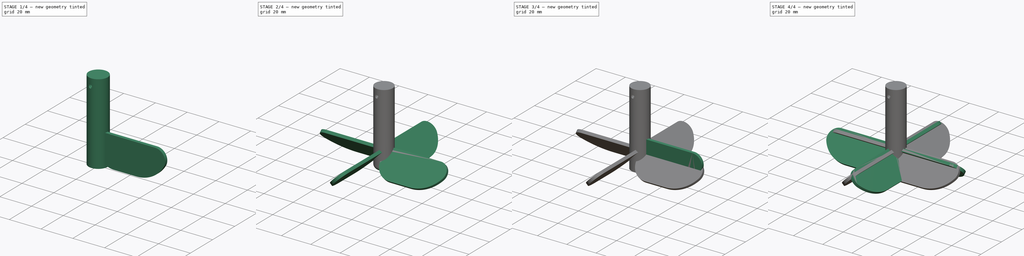
[diagram: build sequence overview — one tinted view per stage of 4, left to right]
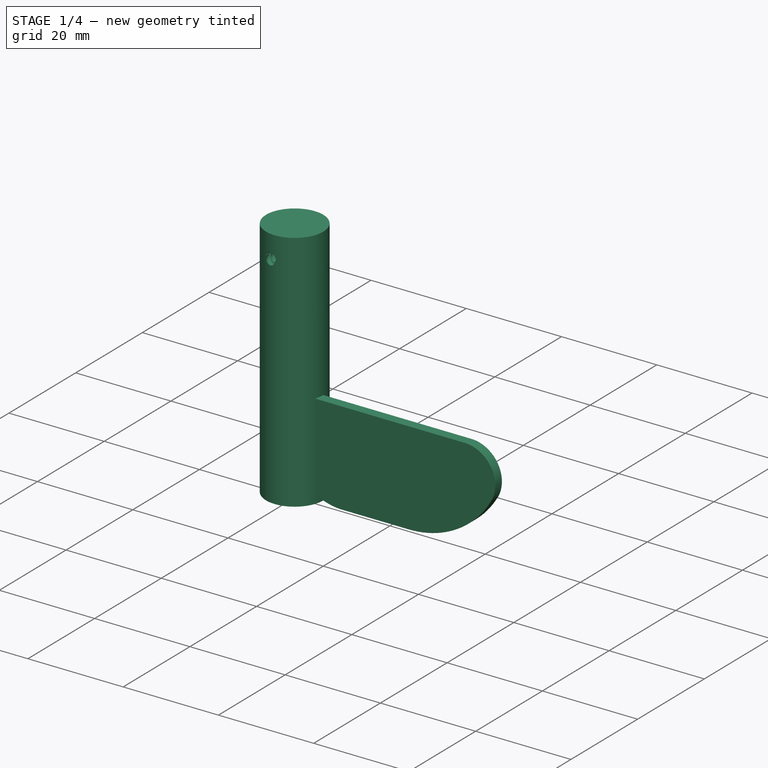
[diagram: stage 1 of 4 — iso view after this stage's code; geometry added in this stage tinted green]
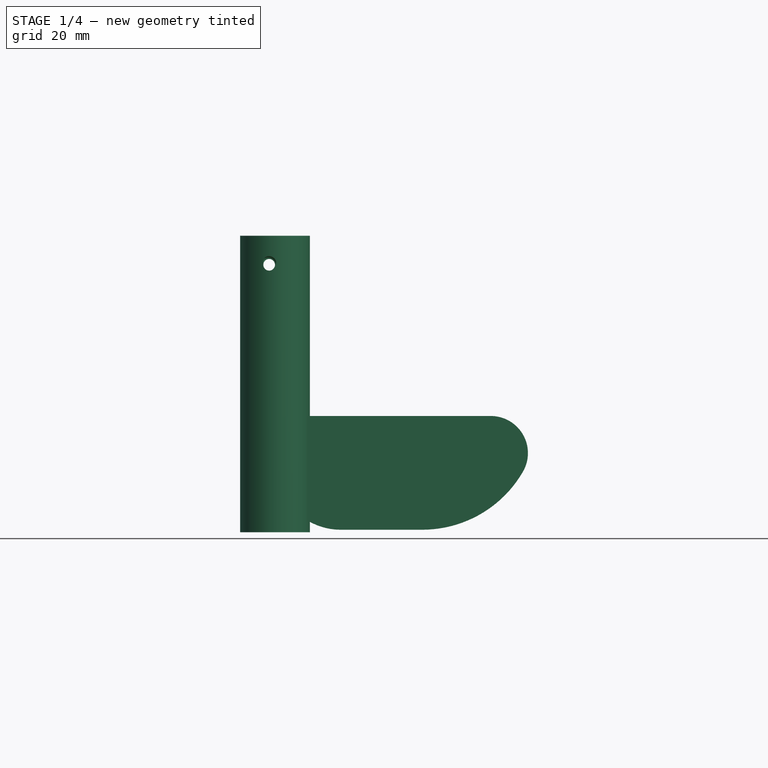
[diagram: stage 1 of 4 — front view after this stage's code; geometry added in this stage tinted green]
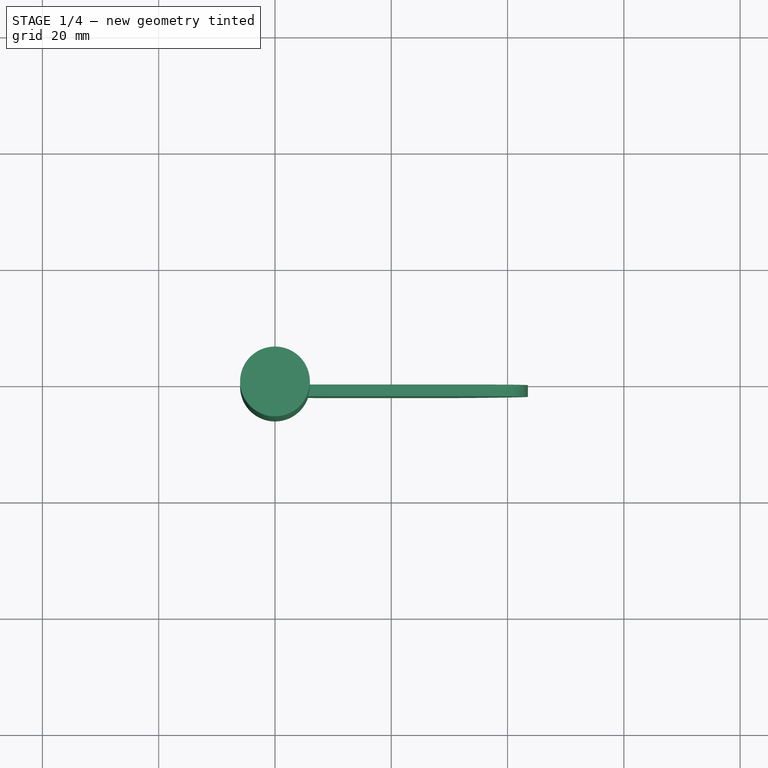
[diagram: stage 1 of 4 — top view after this stage's code; geometry added in this stage tinted green]
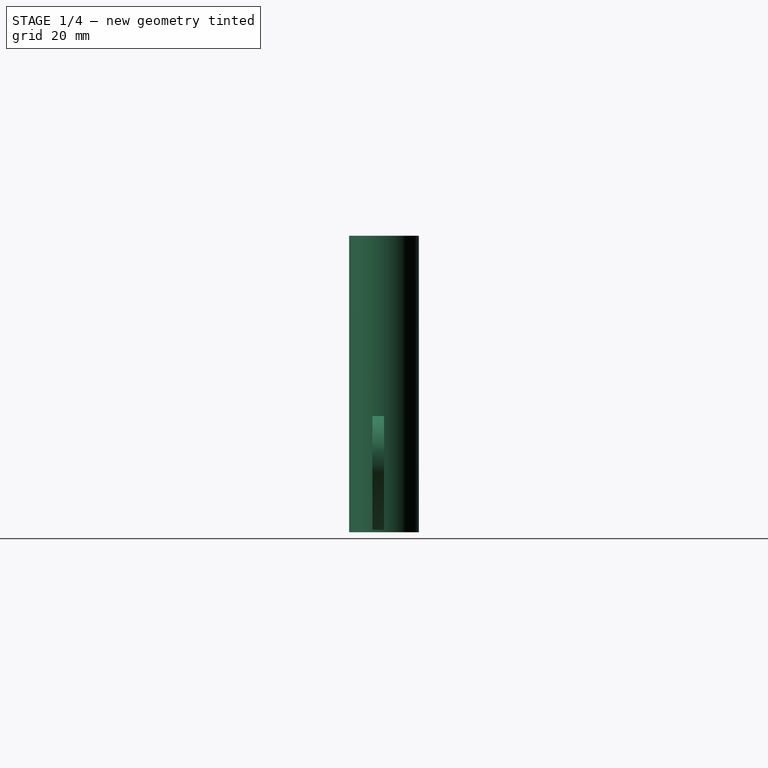
[diagram: stage 1 of 4 — right view after this stage's code; geometry added in this stage tinted green]
FCSTD DOCUMENT  (FreeCAD 0.19R)
Label: helice
License: Creative Commons Attribution-ShareAlike
LicenseURL: http://creativecommons.org/licenses/by-sa/4.0/
objects: Sketcher::SketchObject×2, PartDesign::Pad×2, PartDesign::Body×2, Part::Cylinder×2, Part::FeaturePython×2, Part::Feature×2, Part::Cut×2, Part::MultiFuse×2, Part::Fillet×2, App::DocumentObjectGroup×1
note: 18 computed .brp shape members not serialized (recipe doc carries the construction recipe); baked Part::Feature solids carry a one-line shape summary decoded from their .brp

FEATURE [Part::Feature] Fusion001005  label="Rosca macho005"
  Placement = pos=(-1,8,46) rot=(1,0,0;1.5708rad)
  shape: bbox 3.919 x 44 x 4.387 mm, 35 faces (baked)
FEATURE [Sketcher::SketchObject] Sketch001
  FullyConstrained = false
  MapMode = 5
  Placement = pos=(0,0,0) rot=(1,0,0;1.5708rad)
  Support = -> [XZ_Plane001]
  sketch-geometry (8):
    g0: LineSegment StartX=0.337026 StartY=20 StartZ=0 EndX=25.337 EndY=20 EndZ=0
    g1: LineSegment StartX=11.2871 StartY=0.437393 StartZ=0 EndX=25.337 EndY=0.437393 EndZ=0
    g2: LineSegment StartX=0.337026 StartY=20 StartZ=0 EndX=0.337026 EndY=11.3875 EndZ=0
    g3: ArcOfCircle CenterX=25.337 CenterY=20.4374 CenterZ=0 NormalX=0 NormalY=0 NormalZ=1 AngleXU=0 Radius=20 StartAngle=4.71239 EndAngle=5.75809
    g4: GeomPoint X=40.6848 Y=7.61375 Z=0
    g5: LineSegment StartX=25.337 StartY=20 StartZ=0 EndX=37.1162 EndY=20 EndZ=0
    g6: ArcOfCircle CenterX=37.1162 CenterY=13.6132 CenterZ=0 NormalX=0 NormalY=0 NormalZ=1 AngleXU=0 Radius=6.38684 StartAngle=5.75809 EndAngle=7.85398
    g7: ArcOfCircle CenterX=11.2871 CenterY=11.3875 CenterZ=0 NormalX=0 NormalY=0 NormalZ=1 AngleXU=0 Radius=10.9501 StartAngle=3.14159 EndAngle=4.71239
  constraints (17):
    c: Coincident(g3,g1)
    c: Vertical(g0,g3)
    c: Vertical(g1,g0)
    c: Horizontal(g0)
    c: PointOnObject(g4,g3)
    c: Coincident(g2,g0)
    c: Coincident(g5,g0)
    c: Horizontal(g5)
    c: Vertical(g2)
    c: DistanceY(g-1,g0) = 20
    c: Radius(g3) = 20
    c: DistanceX(g0,g3) = 25  'Reff'
    c: Horizontal(g1)
    c: Tangent(g3,g6) = -1.5708
    c: Tangent(g5,g6) = 1.5708
    c: Tangent(g1,g7) = -1.5708
    c: Tangent(g2,g7) = -1.5708
FEATURE [PartDesign::Pad] Pad001
  Direction = (1,1,1)
  Length = 2
  Length2 = 100
  Placement = pos=(0,0,0) rot=(1,0,0;1.5708rad)
  Profile = -> Sketch001
  Refine = true
  Type = 0
FEATURE [Part::Cylinder] Cylinder001  label="Eje002"
  Angle = 360
  AttacherType = Attacher::AttachEngine3D
  Height = 51
  Radius = 6
FEATURE [Part::Cut] Cut001  label="Base001"
  Base = -> Cylinder001
  Refine = true
  Tool = -> Fusion001005
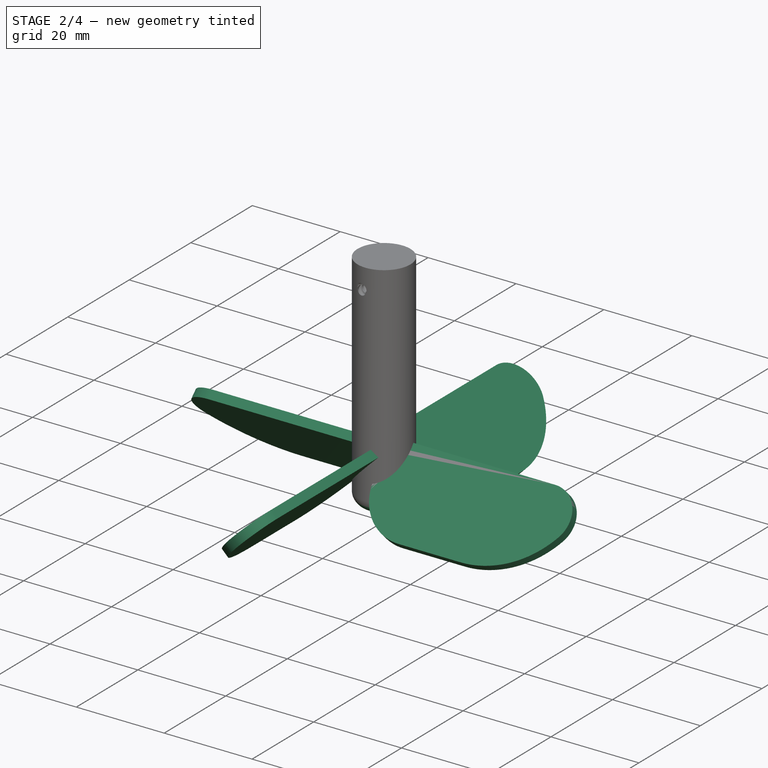
[diagram: stage 2 of 4 — iso view after this stage's code; geometry added in this stage tinted green]
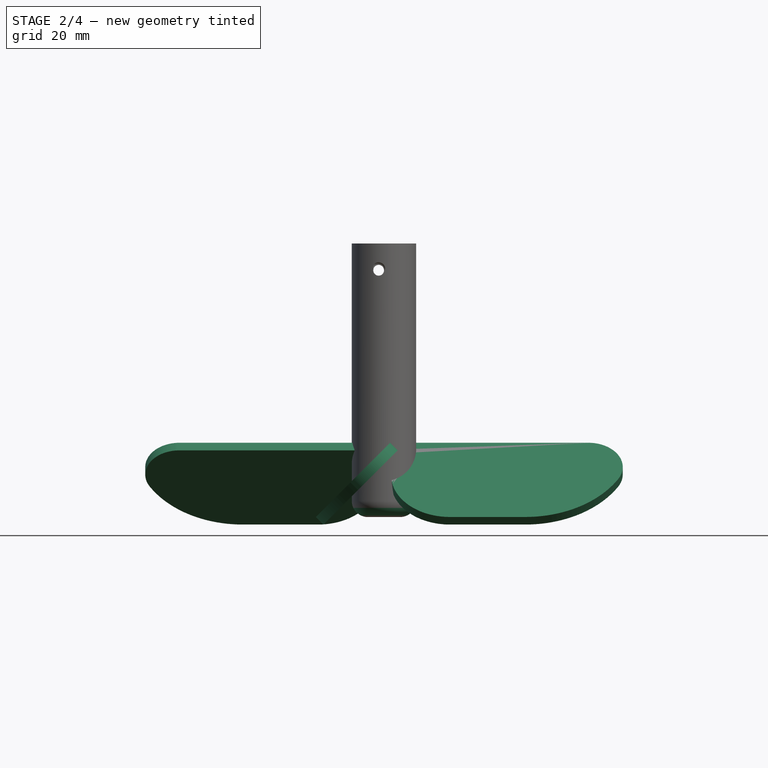
[diagram: stage 2 of 4 — front view after this stage's code; geometry added in this stage tinted green]
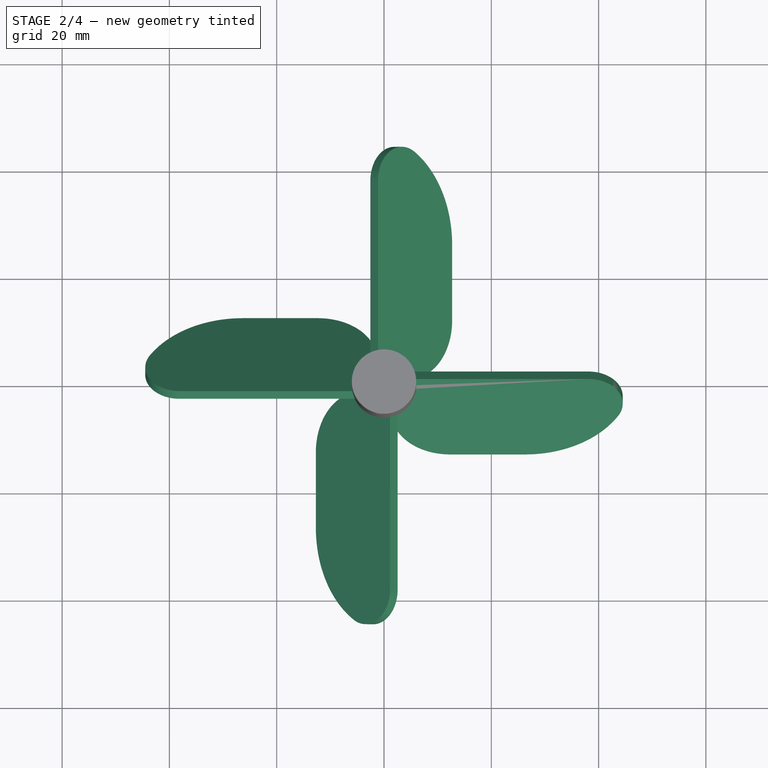
[diagram: stage 2 of 4 — top view after this stage's code; geometry added in this stage tinted green]
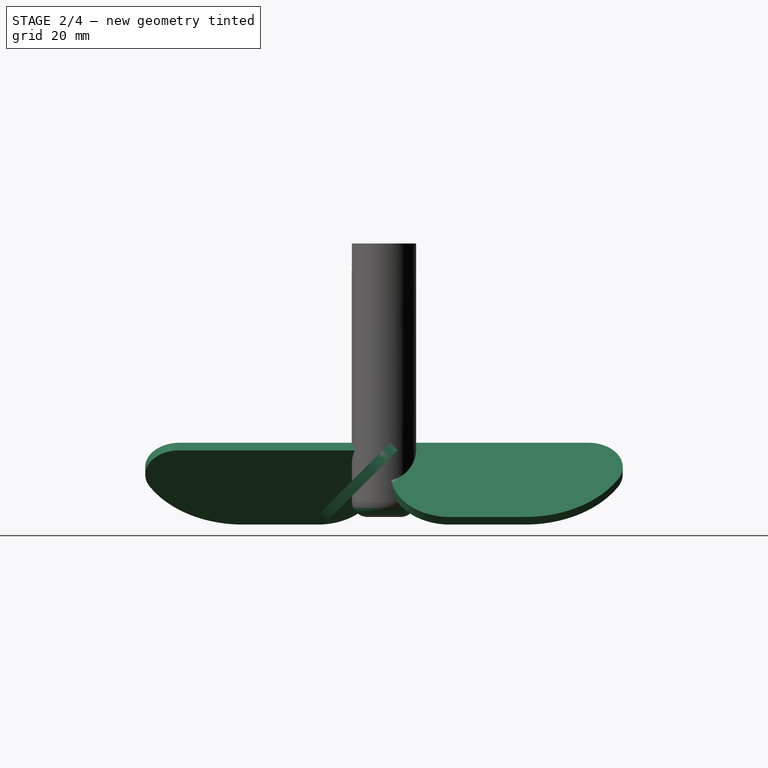
[diagram: stage 2 of 4 — right view after this stage's code; geometry added in this stage tinted green]
FEATURE [PartDesign::Body] Body001  label="Helice001"
  Group = -> [Sketch001,Pad001]
  Origin = -> Origin001
  Placement = pos=(1,-11.6,-1.71) rot=(-1,0,0;0.785398rad)
  Tip = -> Pad001
FEATURE [Part::FeaturePython] Array001  label="Helices"  # Draft array (typed FeaturePython)
  Angle = 360
  ArrayType = 1
  Axis = (0,0,1)
  Base = -> Body001
  Center = (0,0,0)
  Count = 4
  ExpandArray = false
  Fuse = false
  IntervalAxis = (0,0,0)
  IntervalX = (50,0,0)
  IntervalY = (0,50,0)
  IntervalZ = (0,0,50)
  NumberCircles = 3
  NumberPolar = 4
  NumberX = 2
  NumberY = 2
  NumberZ = 1
  PlacementList = 4 placements: [(1,-11.6,-1.71),(11.6,1,-1.71),(-1,11.6,-1.71),(-11.6,-1,-1.71)]
  RadialDistance = 50
  ScaleList = (4) [(1,1,1),(1,1,1),(1,1,1),(1,1,1)]
  Symmetry = 1
  TangentialDistance = 25
FEATURE [Part::MultiFuse] Fusion001006  label="Helice_derecha"
  Refine = true
  Shapes = -> [Cut001,Array001]
FEATURE [Part::Fillet] Fillet001  label="Helice_drecha"
  Base = -> Fusion001006
  Edges = 1 edges r=3: [Edge1]
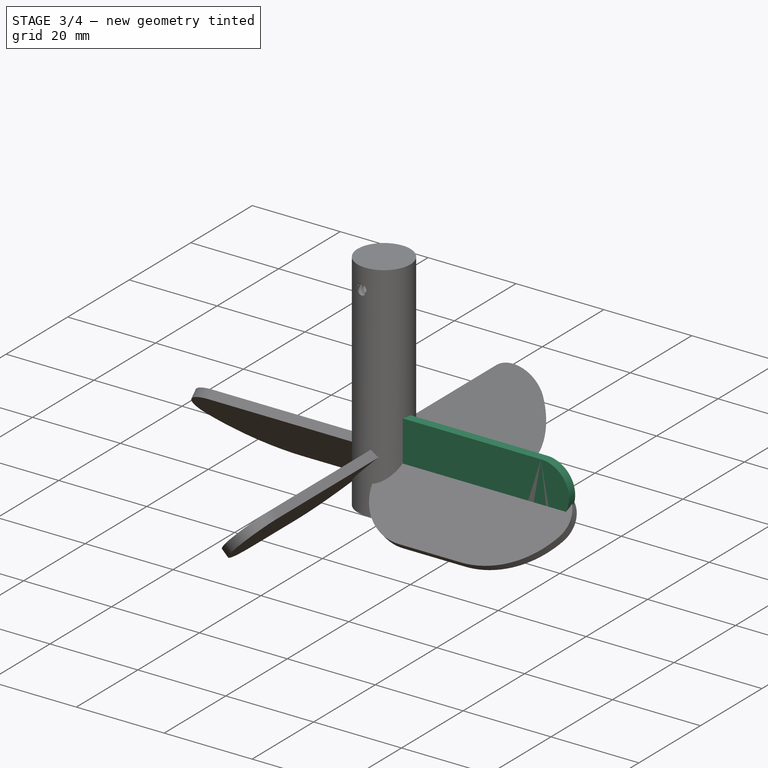
[diagram: stage 3 of 4 — iso view after this stage's code; geometry added in this stage tinted green]
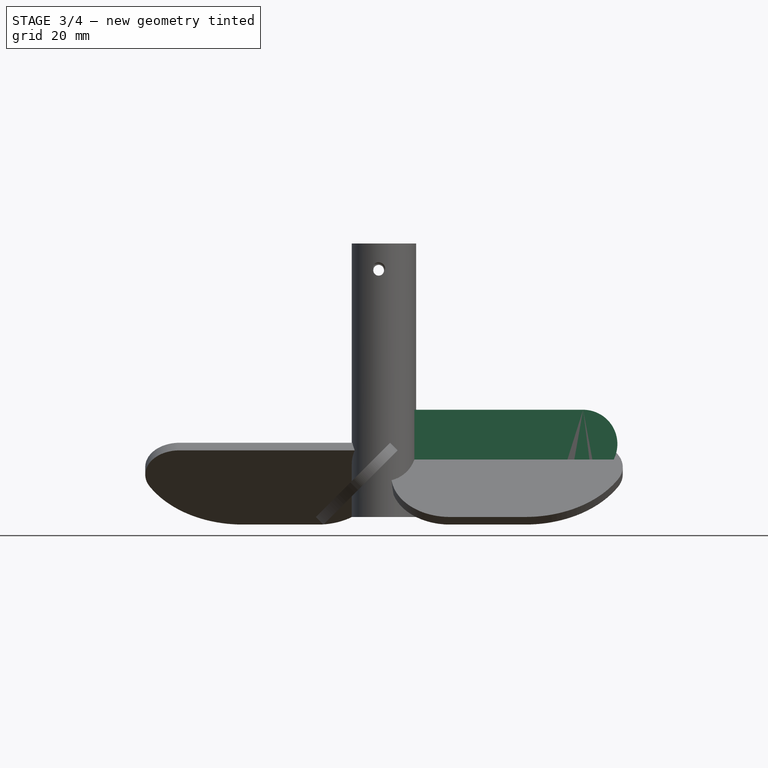
[diagram: stage 3 of 4 — front view after this stage's code; geometry added in this stage tinted green]
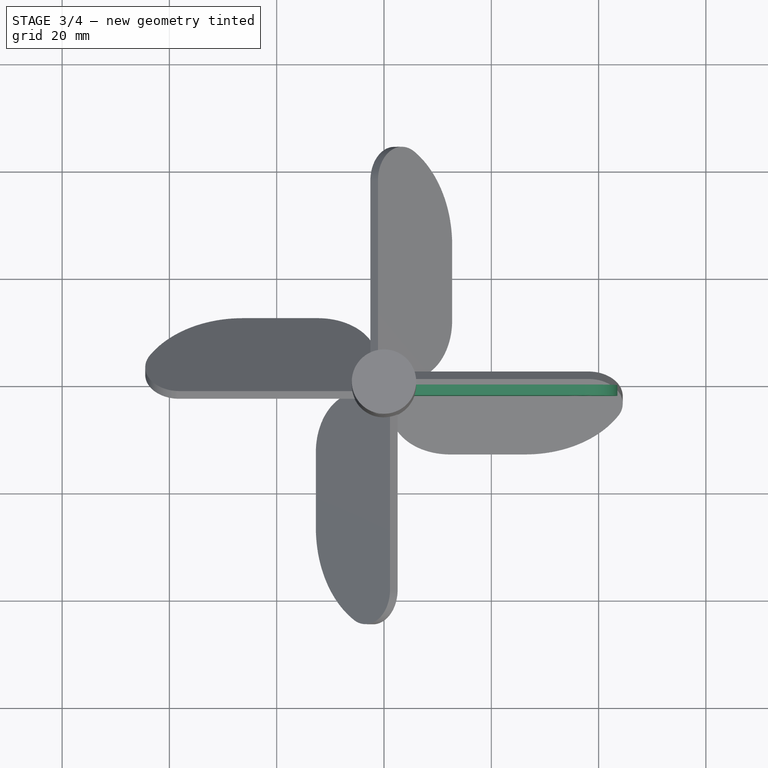
[diagram: stage 3 of 4 — top view after this stage's code; geometry added in this stage tinted green]
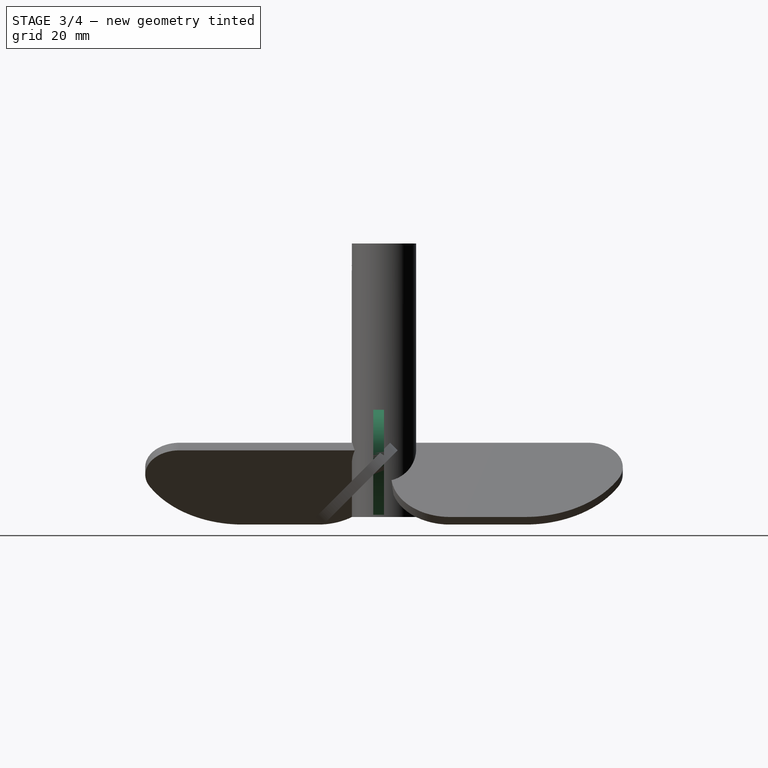
[diagram: stage 3 of 4 — right view after this stage's code; geometry added in this stage tinted green]
FEATURE [Sketcher::SketchObject] Sketch
  FullyConstrained = false
  MapMode = 5
  Placement = pos=(0,0,0) rot=(1,0,0;1.5708rad)
  Support = -> [XZ_Plane]
  sketch-geometry (8):
    g0: LineSegment StartX=0.337026 StartY=20 StartZ=0 EndX=25.337 EndY=20 EndZ=0
    g1: LineSegment StartX=11.2871 StartY=0.437393 StartZ=0 EndX=25.337 EndY=0.437393 EndZ=0
    g2: LineSegment StartX=0.337026 StartY=20 StartZ=0 EndX=0.337026 EndY=11.3875 EndZ=0
    g3: ArcOfCircle CenterX=25.337 CenterY=20.4374 CenterZ=0 NormalX=0 NormalY=0 NormalZ=1 AngleXU=0 Radius=20 StartAngle=4.71239 EndAngle=5.75809
    g4: GeomPoint X=40.6848 Y=7.61375 Z=0
    g5: LineSegment StartX=25.337 StartY=20 StartZ=0 EndX=37.1162 EndY=20 EndZ=0
    g6: ArcOfCircle CenterX=37.1162 CenterY=13.6132 CenterZ=0 NormalX=0 NormalY=0 NormalZ=1 AngleXU=0 Radius=6.38684 StartAngle=5.75809 EndAngle=7.85398
    g7: ArcOfCircle CenterX=11.2871 CenterY=11.3875 CenterZ=0 NormalX=0 NormalY=0 NormalZ=1 AngleXU=0 Radius=10.9501 StartAngle=3.14159 EndAngle=4.71239
  constraints (17):
    c: Coincident(g3,g1)
    c: Vertical(g0,g3)
    c: Vertical(g1,g0)
    c: Horizontal(g0)
    c: PointOnObject(g4,g3)
    c: Coincident(g2,g0)
    c: Coincident(g5,g0)
    c: Horizontal(g5)
    c: Vertical(g2)
    c: DistanceY(g-1,g0) = 20
    c: Radius(g3) = 20
    c: DistanceX(g0,g3) = 25  'Reff'
    c: Horizontal(g1)
    c: Tangent(g3,g6) = -1.5708
    c: Tangent(g5,g6) = 1.5708
    c: Tangent(g1,g7) = -1.5708
    c: Tangent(g2,g7) = -1.5708
FEATURE [PartDesign::Pad] Pad
  Direction = (1,1,1)
  Length = 2
  Length2 = 100
  Placement = pos=(0,0,0) rot=(1,0,0;1.5708rad)
  Profile = -> Sketch
  Refine = true
  Type = 0
FEATURE [PartDesign::Body] Body  label="Helice"
  Group = -> [Sketch,Pad]
  Origin = -> Origin
  Placement = pos=(1,13,0) rot=(1,0,0;0.785398rad)
  Tip = -> Pad
FEATURE [Part::Cylinder] Cylinder  label="Eje"
  Angle = 360
  AttacherType = Attacher::AttachEngine3D
  Height = 51
  Radius = 6
FEATURE [App::DocumentObjectGroup] Grupo  label="Eje001"
FEATURE [Part::Feature] Fusion001003  label="Rosca macho004"
  Placement = pos=(-1,8,46) rot=(1,0,0;1.5708rad)
  shape: bbox 3.919 x 44 x 4.387 mm, 35 faces (baked)
FEATURE [Part::Cut] Cut  label="Base"
  Base = -> Cylinder
  Refine = true
  Tool = -> Fusion001003
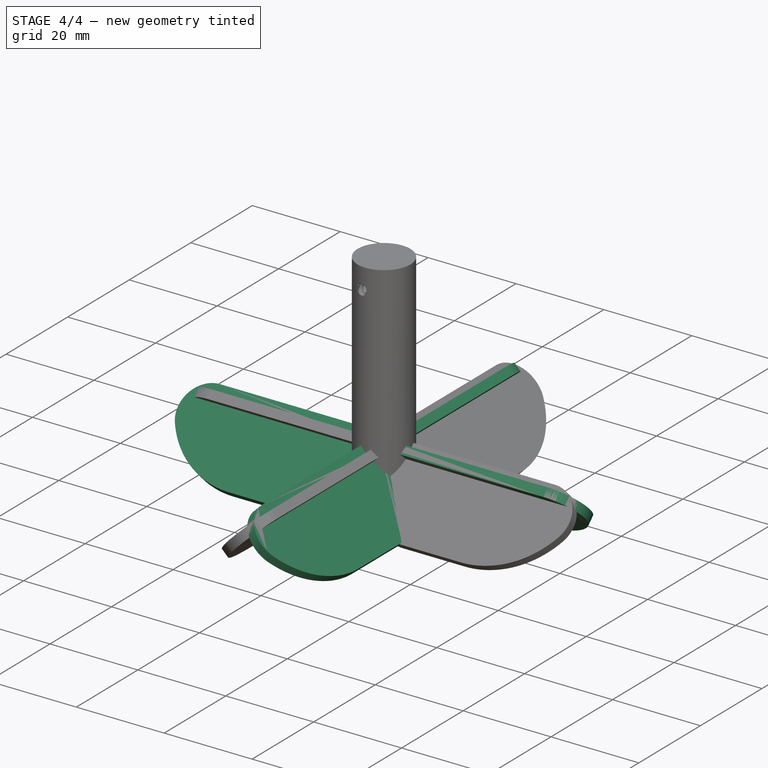
[diagram: stage 4 of 4 — iso view after this stage's code; geometry added in this stage tinted green]
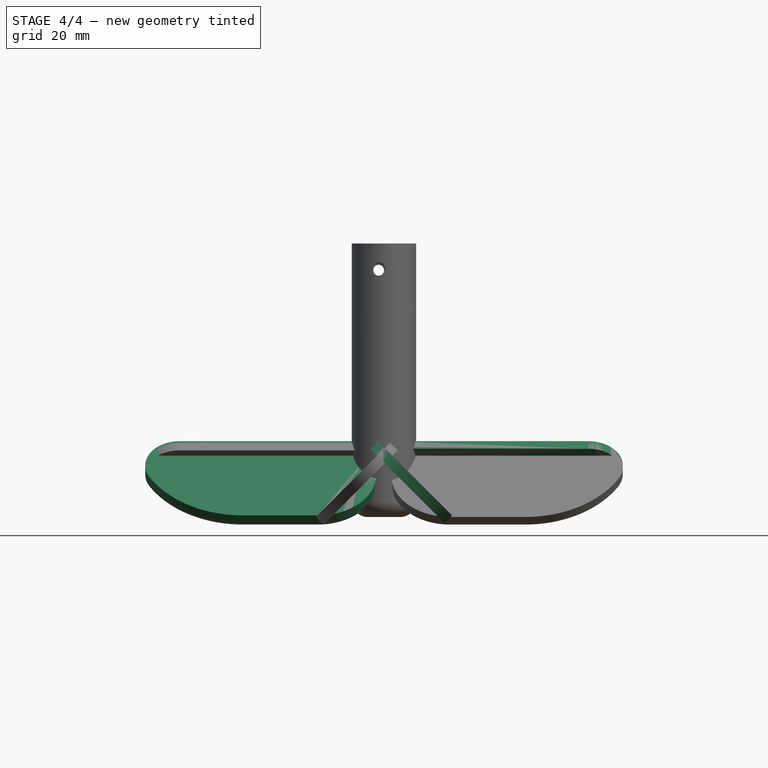
[diagram: stage 4 of 4 — front view after this stage's code; geometry added in this stage tinted green]
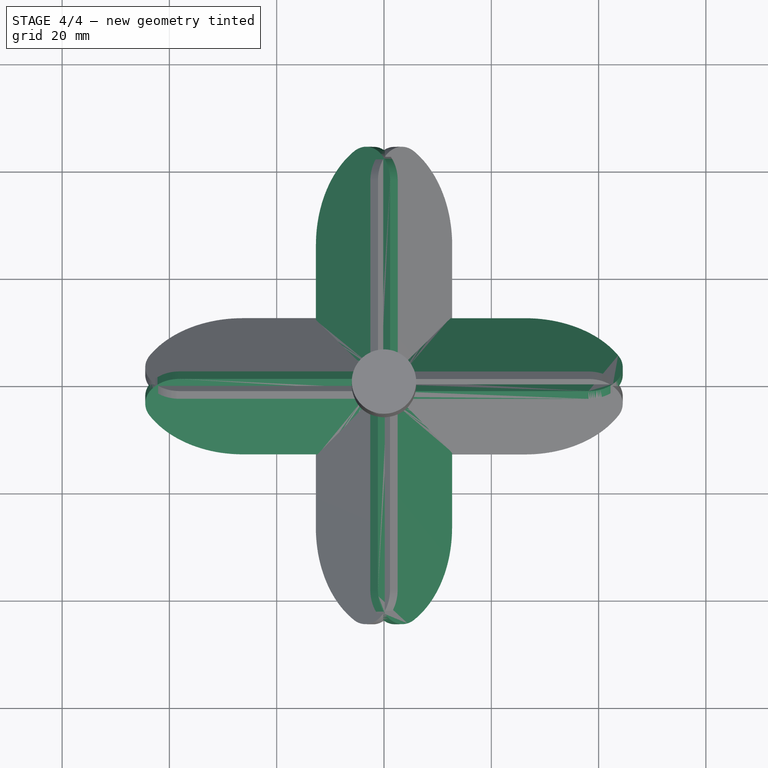
[diagram: stage 4 of 4 — top view after this stage's code; geometry added in this stage tinted green]
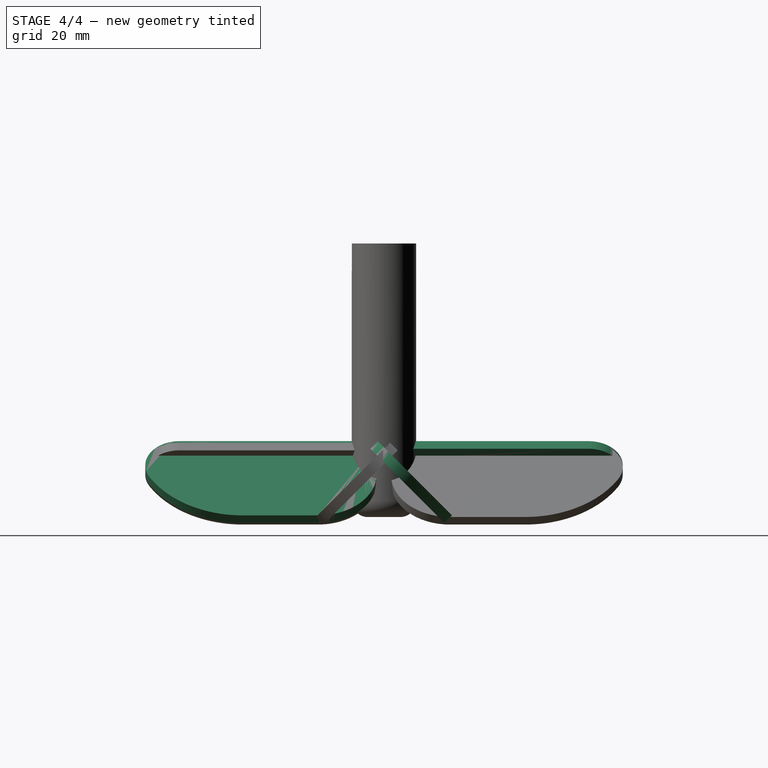
[diagram: stage 4 of 4 — right view after this stage's code; geometry added in this stage tinted green]
FEATURE [Part::FeaturePython] Array  label="Hélices"  # Draft array (typed FeaturePython)
  Angle = 360
  ArrayType = 1
  Axis = (0,0,1)
  Base = -> Body
  Center = (0,0,0)
  Count = 4
  ExpandArray = false
  Fuse = false
  IntervalAxis = (0,0,0)
  IntervalX = (50,0,0)
  IntervalY = (0,50,0)
  IntervalZ = (0,0,50)
  NumberCircles = 3
  NumberPolar = 4
  NumberX = 2
  NumberY = 2
  NumberZ = 1
  PlacementList = 4 placements: [(1,13,0),(-13,1,0),(-1,-13,0),(13,-1,0)]
  RadialDistance = 50
  ScaleList = (4) [(1,1,1),(1,1,1),(1,1,1),(1,1,1)]
  Symmetry = 1
  TangentialDistance = 25
FEATURE [Part::MultiFuse] Fusion  label="Helice_izquierda"
  Refine = true
  Shapes = -> [Cut,Array]
FEATURE [Part::Fillet] Fillet  label="Helice_izquierda001"
  Base = -> Fusion
  Edges = 1 edges r=3: [Edge1]
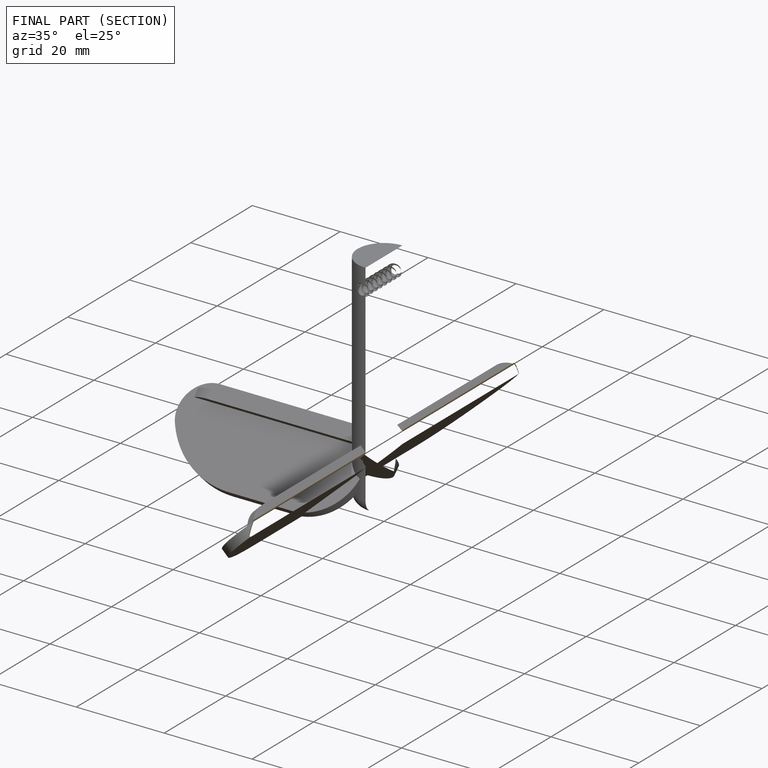
[diagram: finished part — half-section view (interior)]
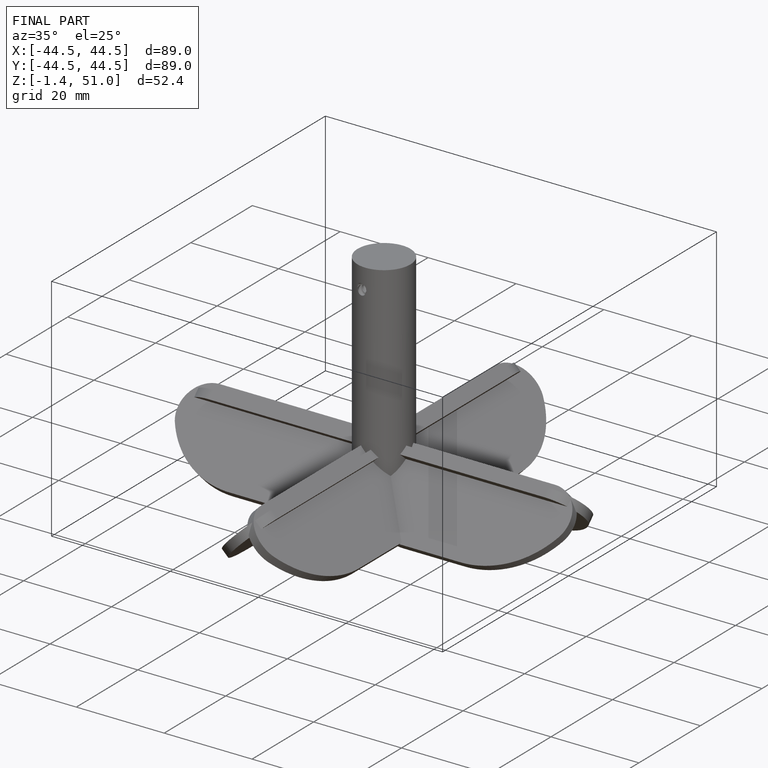
[diagram: finished part — iso view with bounding-box wireframe]
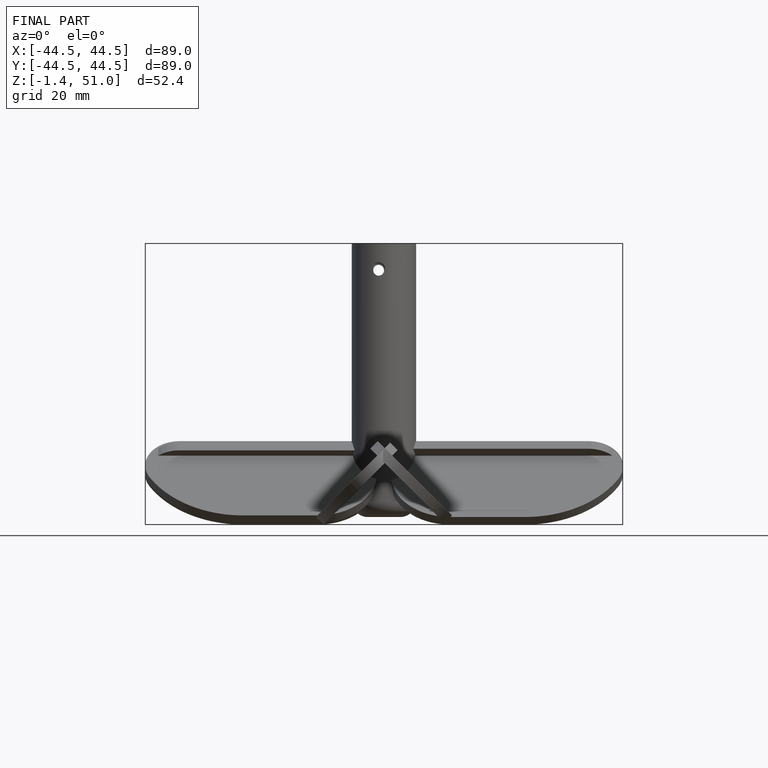
[diagram: finished part — front view with bounding-box wireframe]
